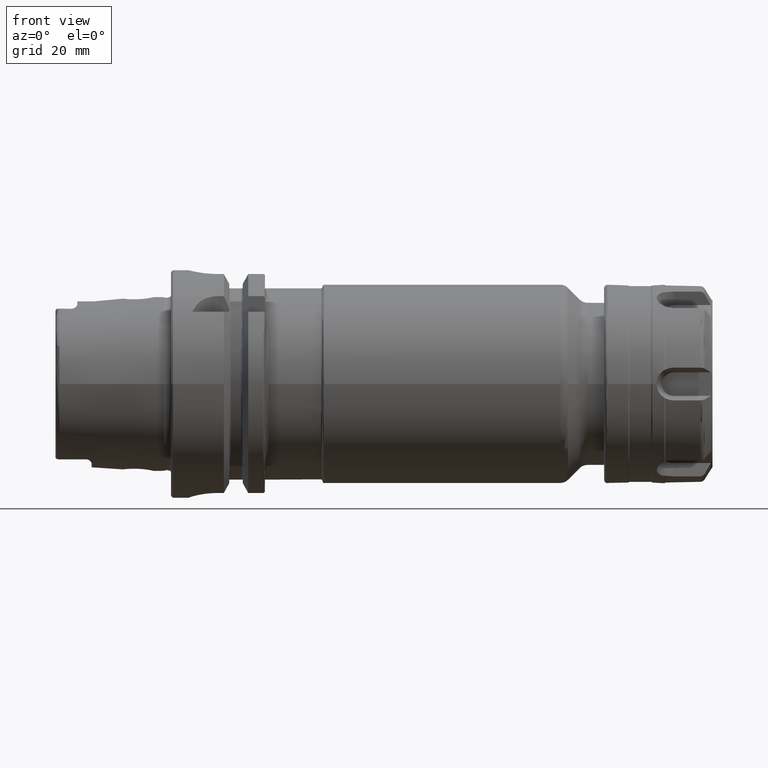
[diagram: clean part render]
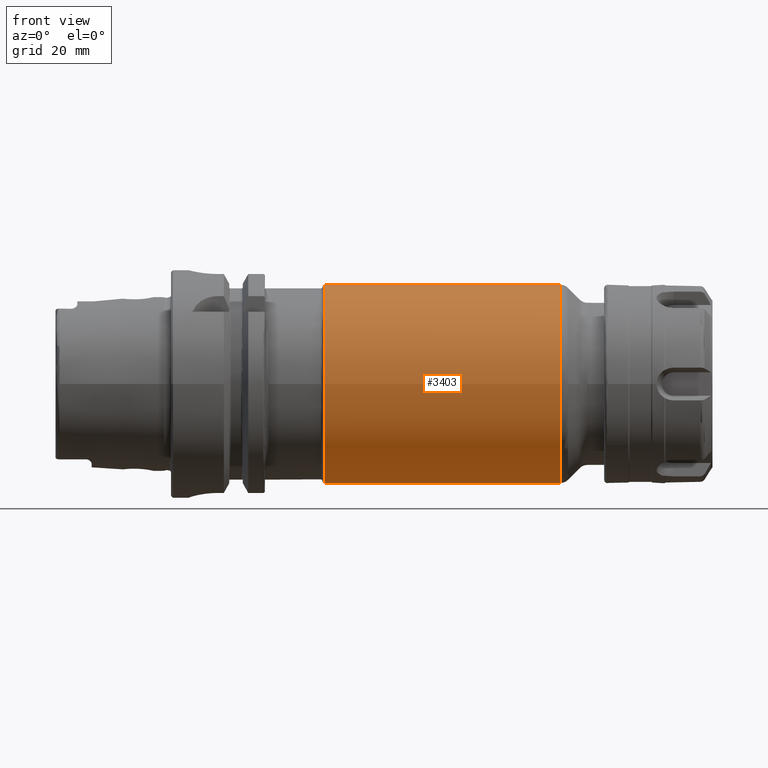
[diagram: same view with one face highlighted and labeled with its STEP entity id]
A machine part, front view. The second image highlights one B-rep face of the part: STEP entity #3403.
In plain terms, the highlighted cylindrical surface (bore or boss wall) has radius 27.5 mm, axis along (1, 0, 0).
Its self-contained STEP definition (entity closure, byte-faithful):
#315=CYLINDRICAL_SURFACE('',#3696,27.5);
#377=FACE_OUTER_BOUND('',#583,.T.);
#583=EDGE_LOOP('',(#2311,#2312,#2313,#2314,#2315,#2316));
#803=LINE('',#5407,#971);
#971=VECTOR('',#4186,27.5);
#1147=CIRCLE('',#3692,27.5);
#1148=CIRCLE('',#3693,27.5);
#1151=CIRCLE('',#3697,27.5);
#1152=CIRCLE('',#3698,27.5);
#1375=VERTEX_POINT('',#5396);
#1376=VERTEX_POINT('',#5397);
#1378=VERTEX_POINT('',#5404);
#1379=VERTEX_POINT('',#5405);
#1742=EDGE_CURVE('',#1375,#1376,#1147,.T.);
#1743=EDGE_CURVE('',#1376,#1375,#1148,.T.);
#1746=EDGE_CURVE('',#1378,#1379,#1151,.T.);
#1747=EDGE_CURVE('',#1378,#1376,#803,.T.);
#1748=EDGE_CURVE('',#1379,#1378,#1152,.T.);
#2311=ORIENTED_EDGE('',*,*,#1746,.F.);
#2312=ORIENTED_EDGE('',*,*,#1747,.T.);
#2313=ORIENTED_EDGE('',*,*,#1742,.F.);
#2314=ORIENTED_EDGE('',*,*,#1743,.F.);
#2315=ORIENTED_EDGE('',*,*,#1747,.F.);
#2316=ORIENTED_EDGE('',*,*,#1748,.F.);
#3403=ADVANCED_FACE('',(#377),#315,.T.);
#3692=AXIS2_PLACEMENT_3D('',#5398,#4174,#4175);
#3693=AXIS2_PLACEMENT_3D('',#5399,#4176,#4177);
#3696=AXIS2_PLACEMENT_3D('',#5403,#4182,#4183);
#3697=AXIS2_PLACEMENT_3D('',#5406,#4184,#4185);
#3698=AXIS2_PLACEMENT_3D('',#5408,#4187,#4188);
#4174=DIRECTION('center_axis',(-1.,0.,0.));
#4175=DIRECTION('ref_axis',(0.,-1.,1.83697019872103E-16));
#4176=DIRECTION('center_axis',(-1.,0.,0.));
#4177=DIRECTION('ref_axis',(0.,-1.,1.83697019872103E-16));
#4182=DIRECTION('center_axis',(1.,0.,0.));
#4183=DIRECTION('ref_axis',(0.,1.,0.));
#4184=DIRECTION('center_axis',(1.,0.,0.));
#4185=DIRECTION('ref_axis',(0.,-1.,1.83697019872103E-16));
#4186=DIRECTION('',(-1.,0.,0.));
#4187=DIRECTION('center_axis',(1.,0.,0.));
#4188=DIRECTION('ref_axis',(0.,-1.,1.83697019872103E-16));
#5396=CARTESIAN_POINT('',(42.5,-3.36777869765522E-15,27.5));
#5397=CARTESIAN_POINT('',(42.5,-27.5,-3.36777869765522E-15));
#5398=CARTESIAN_POINT('Origin',(42.5,0.,0.));
#5399=CARTESIAN_POINT('Origin',(42.5,0.,0.));
#5403=CARTESIAN_POINT('Origin',(75.55,0.,0.));
#5404=CARTESIAN_POINT('',(107.857359312881,-27.5,-3.36777869765522E-15));
#5405=CARTESIAN_POINT('',(107.857359312881,-3.36777869765522E-15,27.5));
#5406=CARTESIAN_POINT('Origin',(107.857359312881,0.,0.));
#5407=CARTESIAN_POINT('',(75.55,-27.5,-3.36777869765522E-15));
#5408=CARTESIAN_POINT('Origin',(107.857359312881,0.,0.));